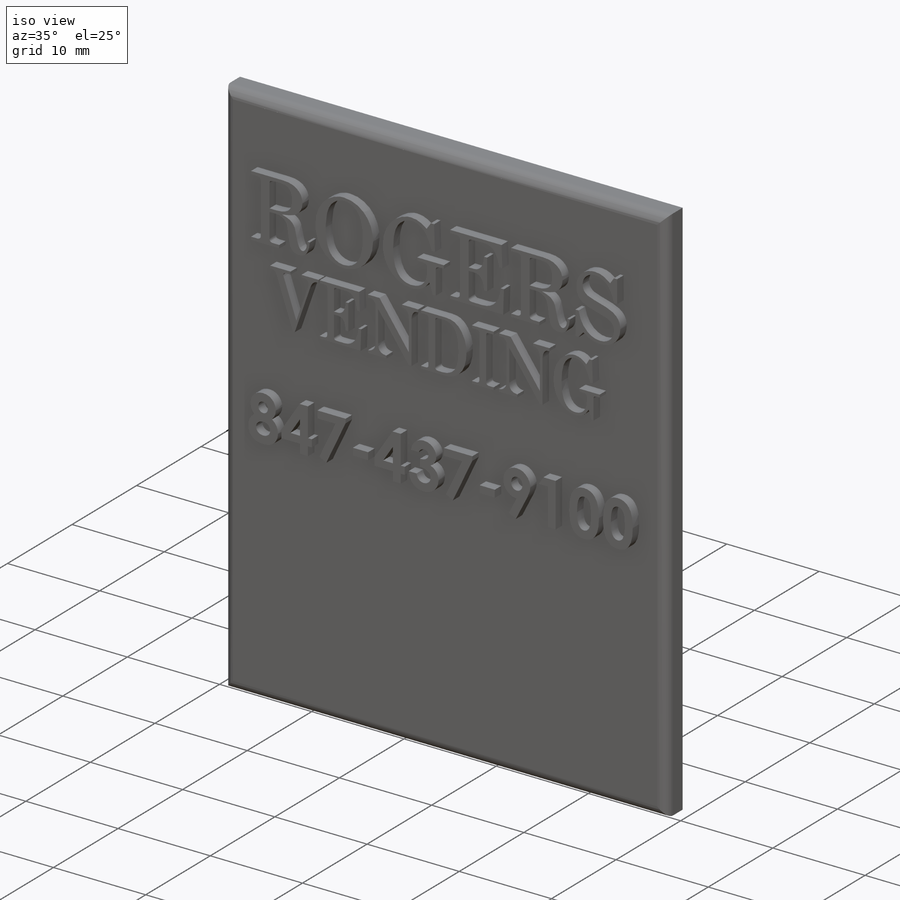
[diagram: iso view]
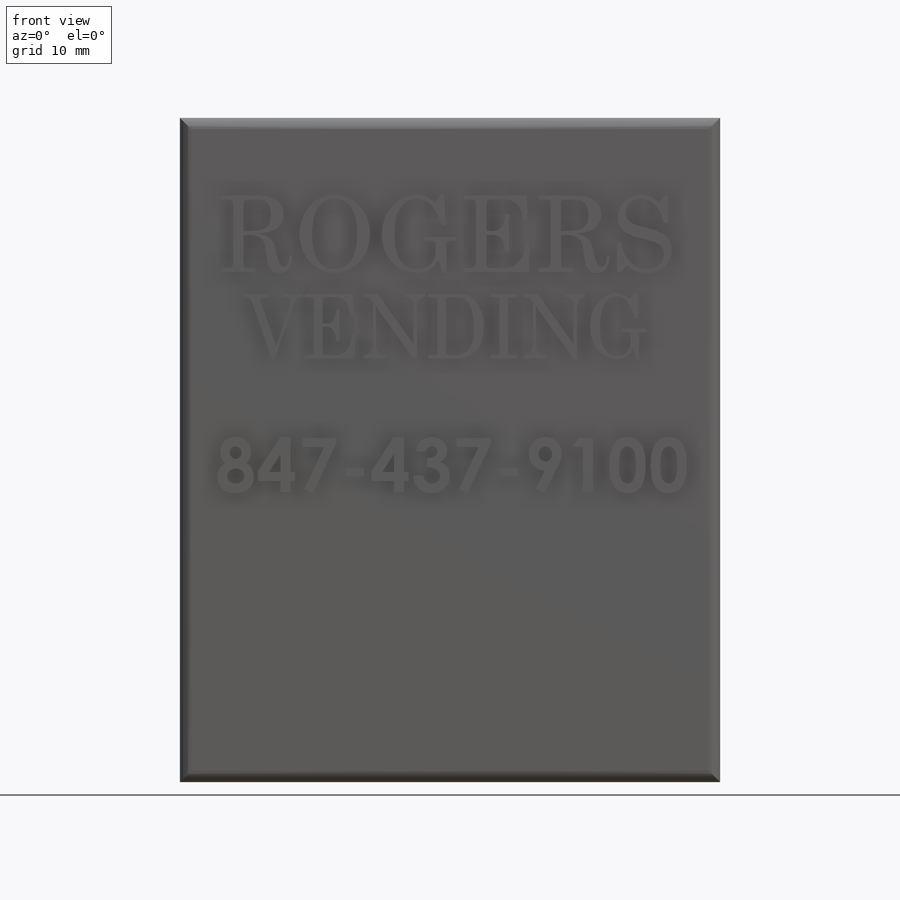
[diagram: front view]
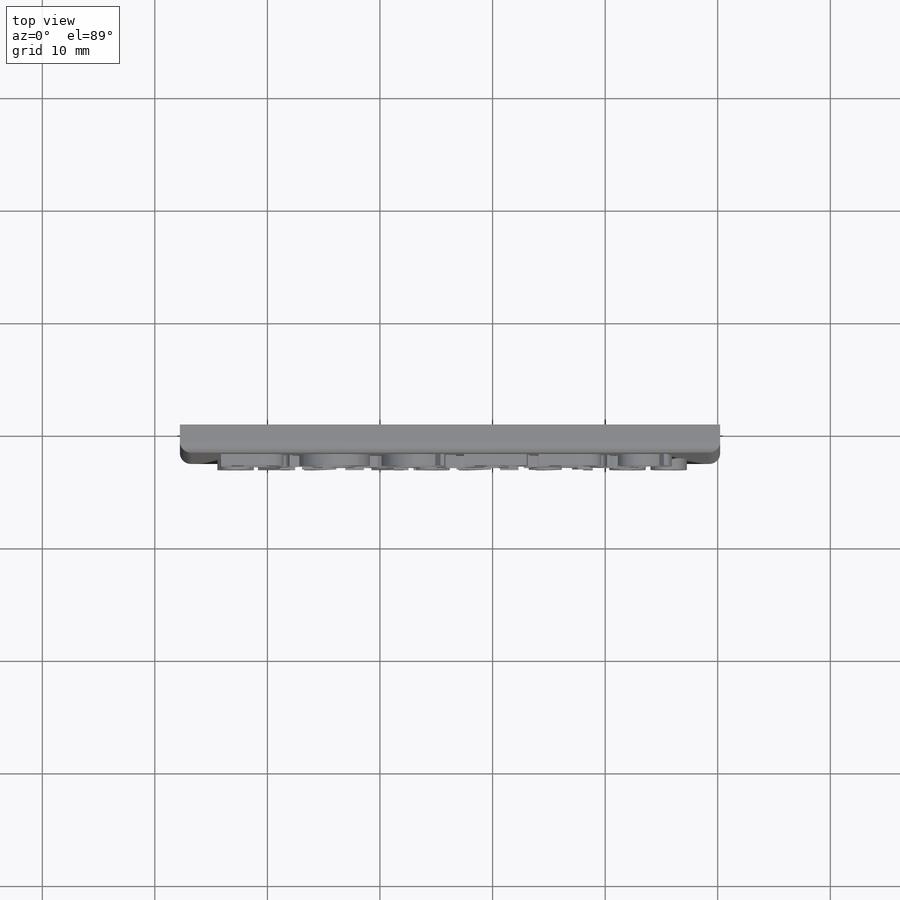
[diagram: top view]
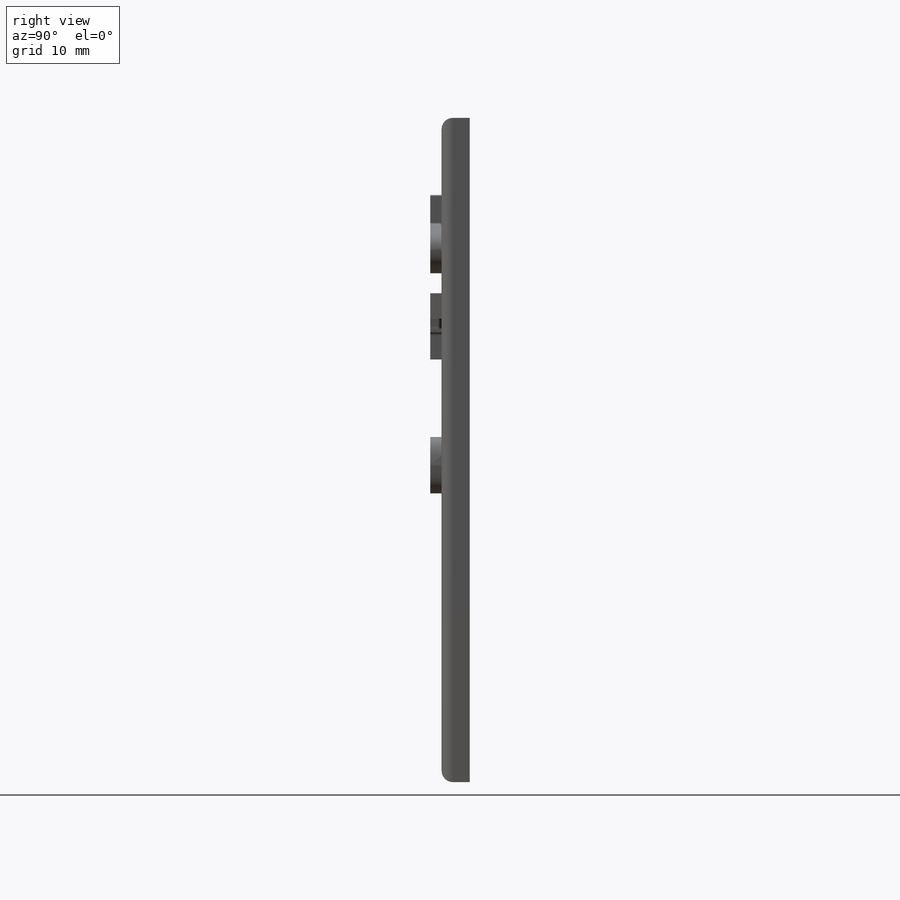
[diagram: right view]
SOLIDWORKS PART (.sldprt)
format: sldprt  version: not decoded by parser v0  size: 725,504 bytes
history: native  units: mm
features: sketch x3, extrude x3, material x1, plane x1, fillet x1 (+13 scaffold rows collapsed)
feature tree (22):
  scaffold x13  (default folders/planes/origin — collapsed)
  material  "Material <not specified>"
  sketch  "Sketch1"  dims[D1=59.0mm D2=48.0mm]
  extrude  "Boss-Extrude1"  Depth=2.5mm
  plane  "Plane1"
  fillet  "Fillet1"  Radius=1mm
  sketch  "Sketch6"
  extrude  "Boss-Extrude4"  Depth=1mm
  sketch  "Sketch8"
  extrude  "Boss-Extrude6"  Depth=1mm
decode coverage: 5 of 7 modeling features carry decoded parameters
note: suppression state not decoded; provenance and decode notes live in map.json
